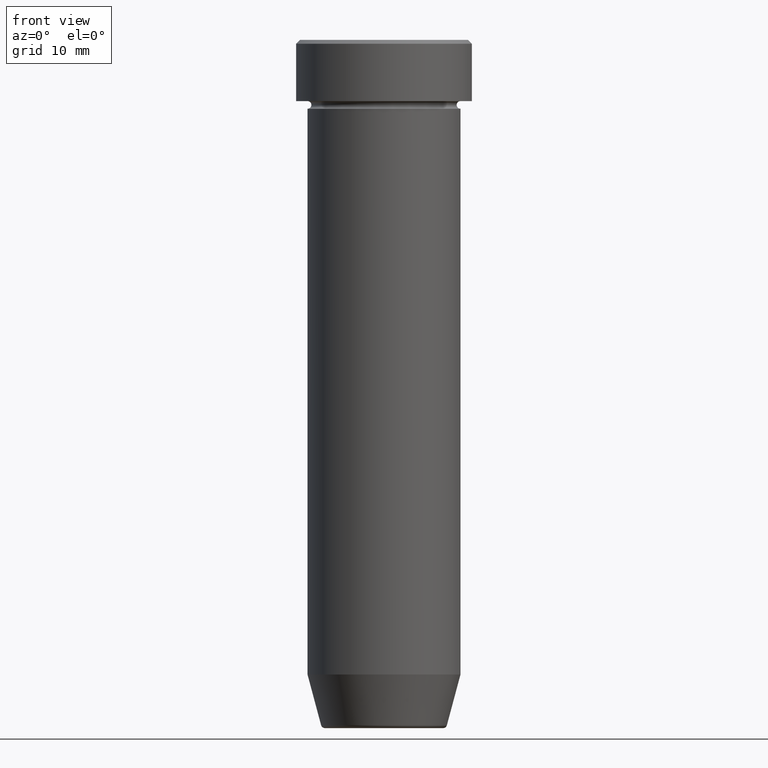
[diagram: clean part render]
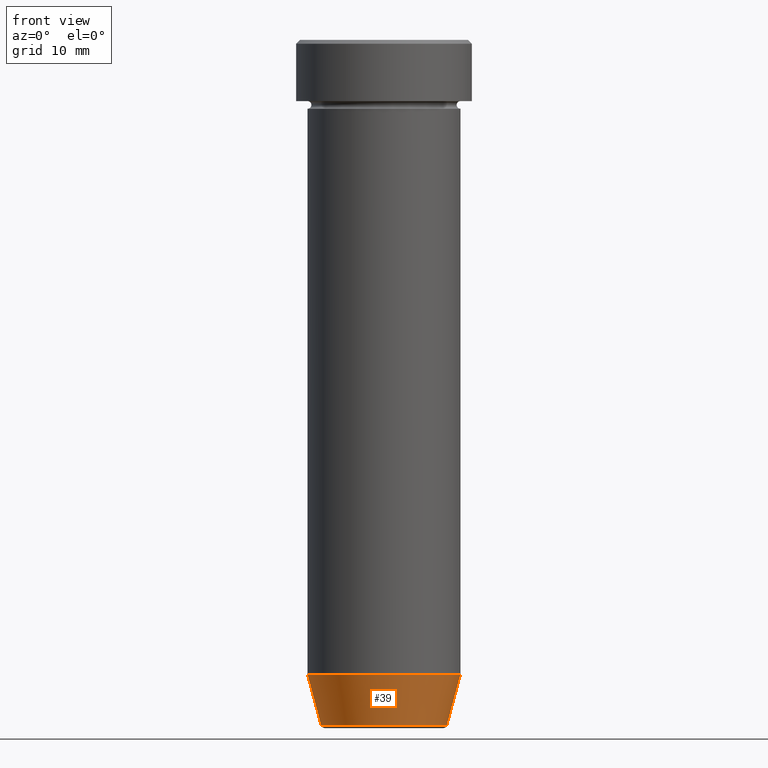
[diagram: same view with one face highlighted and labeled with its STEP entity id]
A machine part, front view. The second image highlights one B-rep face of the part: STEP entity #39.
In plain terms, the highlighted conical surface has half-angle 15 deg.
Its self-contained STEP definition (entity closure, byte-faithful):
#36 = CONICAL_SURFACE ( 'NONE', #381, 8.124355652982131915, 0.2617993877991502405 ) ;
#39 = ADVANCED_FACE ( 'NONE', ( #491 ), #36, .T. ) ;
#49 = EDGE_CURVE ( 'NONE', #373, #92, #310, .T. ) ;
#92 = VERTEX_POINT ( 'NONE', #308 ) ;
#102 = VERTEX_POINT ( 'NONE', #580 ) ;
#117 = VECTOR ( 'NONE', #576, 1000.000000000000114 ) ;
#123 = DIRECTION ( 'NONE',  ( 1.000000000000000000, 0.000000000000000000, 0.000000000000000000 ) ) ;
#124 = DIRECTION ( 'NONE',  ( -0.000000000000000000, -0.000000000000000000, 1.000000000000000000 ) ) ;
#141 = ORIENTED_EDGE ( 'NONE', *, *, #464, .T. ) ;
#155 = ORIENTED_EDGE ( 'NONE', *, *, #49, .F. ) ;
#157 = ORIENTED_EDGE ( 'NONE', *, *, #573, .T. ) ;
#169 = DIRECTION ( 'NONE',  ( -0.000000000000000000, -0.000000000000000000, 1.000000000000000000 ) ) ;
#170 = CARTESIAN_POINT ( 'NONE',  ( 0.000000000000000000, 0.000000000000000000, -89.62940952255125637 ) ) ;
#200 = CARTESIAN_POINT ( 'NONE',  ( 8.223655072137185940, 0.000000000000000000, -89.62940952255125637 ) ) ;
#202 = CARTESIAN_POINT ( 'NONE',  ( 8.124355652982131915, 0.000000000000000000, -90.00000000000000000 ) ) ;
#209 = CARTESIAN_POINT ( 'NONE',  ( 0.000000000000000000, 0.000000000000000000, -90.00000000000000000 ) ) ;
#307 = AXIS2_PLACEMENT_3D ( 'NONE', #440, #124, #394 ) ;
#308 = CARTESIAN_POINT ( 'NONE',  ( -9.999999999999998224, 1.224646799147353059E-15, -82.99999999999998579 ) ) ;
#310 = LINE ( 'NONE', #496, #117 ) ;
#344 = VERTEX_POINT ( 'NONE', #200 ) ;
#366 = AXIS2_PLACEMENT_3D ( 'NONE', #170, #588, #542 ) ;
#373 = VERTEX_POINT ( 'NONE', #421 ) ;
#381 = AXIS2_PLACEMENT_3D ( 'NONE', #209, #169, #123 ) ;
#394 = DIRECTION ( 'NONE',  ( 1.000000000000000000, 0.000000000000000000, 0.000000000000000000 ) ) ;
#395 = ORIENTED_EDGE ( 'NONE', *, *, #597, .F. ) ;
#403 = CIRCLE ( 'NONE', #307, 9.999999999999998224 ) ;
#415 = VECTOR ( 'NONE', #569, 1000.000000000000114 ) ;
#421 = CARTESIAN_POINT ( 'NONE',  ( -8.223655072137185940, 1.115877042642911659E-15, -89.62940952255125637 ) ) ;
#437 = CIRCLE ( 'NONE', #366, 8.223655072137185940 ) ;
#440 = CARTESIAN_POINT ( 'NONE',  ( 0.000000000000000000, 0.000000000000000000, -82.99999999999998579 ) ) ;
#464 = EDGE_CURVE ( 'NONE', #344, #102, #560, .T. ) ;
#491 = FACE_OUTER_BOUND ( 'NONE', #550, .T. ) ;
#496 = CARTESIAN_POINT ( 'NONE',  ( -8.124355652982131915, 9.949466145559272639E-16, -90.00000000000000000 ) ) ;
#542 = DIRECTION ( 'NONE',  ( -1.000000000000000000, 0.000000000000000000, 0.000000000000000000 ) ) ;
#550 = EDGE_LOOP ( 'NONE', ( #155, #157, #141, #395 ) ) ;
#560 = LINE ( 'NONE', #202, #415 ) ;
#569 = DIRECTION ( 'NONE',  ( 0.2588190451025214611, 0.000000000000000000, 0.9659258262890679791 ) ) ;
#573 = EDGE_CURVE ( 'NONE', #373, #344, #437, .T. ) ;
#576 = DIRECTION ( 'NONE',  ( -0.2588190451025214611, 3.169619151431774186E-17, 0.9659258262890679791 ) ) ;
#580 = CARTESIAN_POINT ( 'NONE',  ( 9.999999999999998224, 0.000000000000000000, -82.99999999999998579 ) ) ;
#588 = DIRECTION ( 'NONE',  ( -0.000000000000000000, -0.000000000000000000, 1.000000000000000000 ) ) ;
#597 = EDGE_CURVE ( 'NONE', #92, #102, #403, .T. ) ;